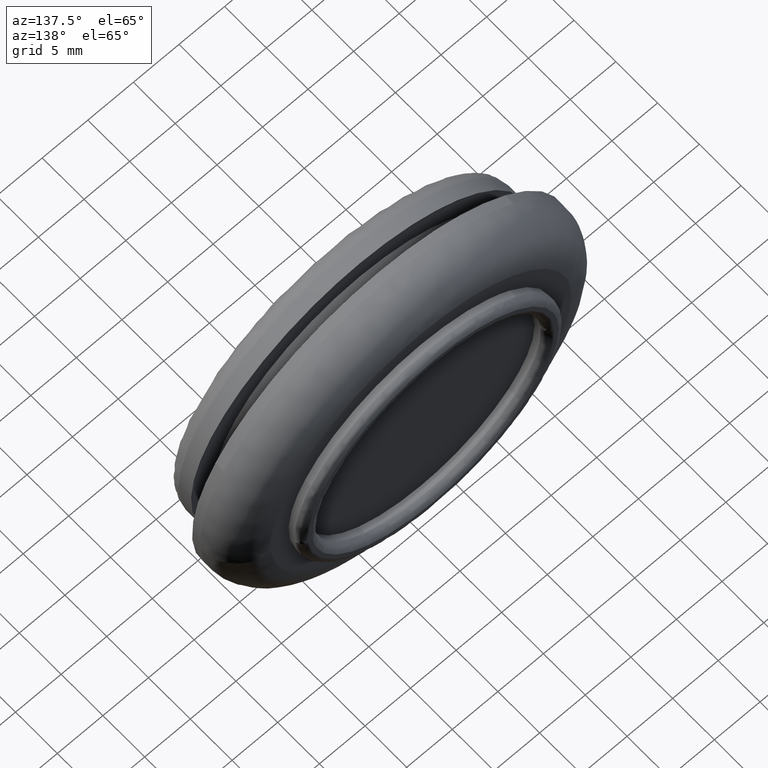
[diagram: clean part render]
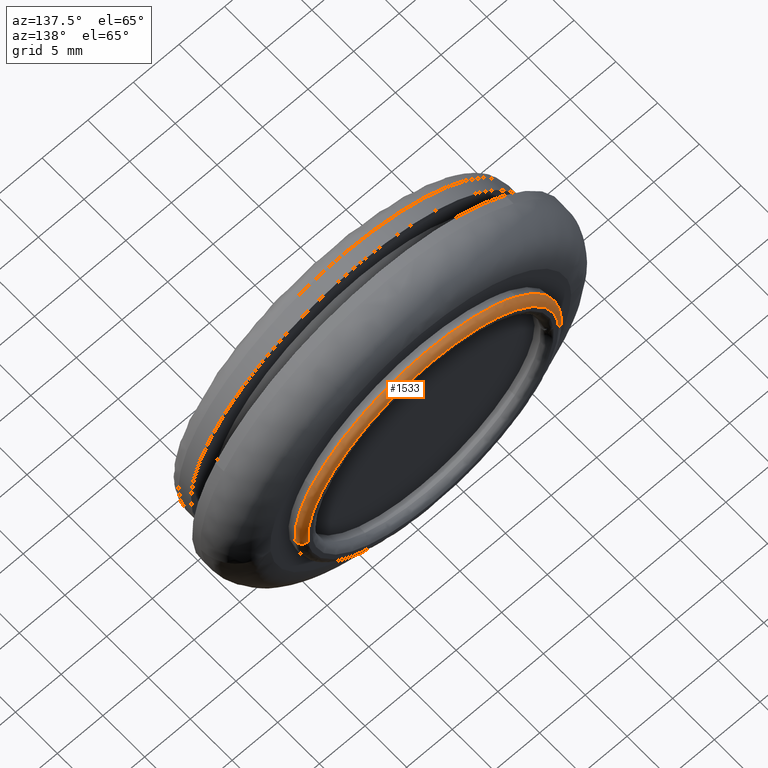
[diagram: same view with one face highlighted and labeled with its STEP entity id]
A machine part, auxiliary view. The second image highlights one B-rep face of the part: STEP entity #1533.
In plain terms, the highlighted face is a freeform B-spline surface patch.
Its self-contained STEP definition (entity closure, byte-faithful):
#464=CARTESIAN_POINT('',(12.686723378155641,11.050000000000081,7.021185792026794));
#465=VERTEX_POINT('',#464);
#466=CARTESIAN_POINT('',(0.0,11.050000000000001,14.500000000000000));
#467=VERTEX_POINT('',#466);
#468=CARTESIAN_POINT('',(12.686723378155639,11.050000000000079,7.021185792026794));
#469=CARTESIAN_POINT('',(8.547739709046137,11.050000000000002,14.500000000000005));
#470=CARTESIAN_POINT('',(0.0,11.050000000000001,14.500000000000000));
#478=(BOUNDED_CURVE()B_SPLINE_CURVE(2,(#468,#469,#470),.UNSPECIFIED.,.F.,.U.)B_SPLINE_CURVE_WITH_KNOTS((3,3),(0.332484281070432,0.500000000000000),.UNSPECIFIED.)CURVE()GEOMETRIC_REPRESENTATION_ITEM()RATIONAL_B_SPLINE_CURVE((0.870495143749140,0.803743127523477,1.0))REPRESENTATION_ITEM(''));
#479=EDGE_CURVE('',#465,#467,#478,.T.);
#481=CARTESIAN_POINT('',(-9.796057882035303,11.050000000057951,10.690521501396081));
#482=VERTEX_POINT('',#481);
#483=CARTESIAN_POINT('',(0.0,11.050000000000001,14.500000000000000));
#484=CARTESIAN_POINT('',(-5.638741411390129,11.050000000000001,14.499999999999998));
#485=CARTESIAN_POINT('',(-9.796057882035303,11.050000000057953,10.690521501396084));
#493=(BOUNDED_CURVE()B_SPLINE_CURVE(2,(#483,#484,#485),.UNSPECIFIED.,.F.,.U.)B_SPLINE_CURVE_WITH_KNOTS((3,3),(0.500000000000000,0.618415205458047),.UNSPECIFIED.)CURVE()GEOMETRIC_REPRESENTATION_ITEM()RATIONAL_B_SPLINE_CURVE((1.0,0.861267957267746,0.853959781285527))REPRESENTATION_ITEM(''));
#494=EDGE_CURVE('',#467,#482,#493,.T.);
#563=CARTESIAN_POINT('',(14.464702270685629,11.050000000222060,-1.011132147853047));
#564=VERTEX_POINT('',#563);
#565=CARTESIAN_POINT('',(14.464702270685633,11.050000000222056,-1.011132147853047));
#566=CARTESIAN_POINT('',(14.500000000000000,11.050000000000006,-0.506182180192494));
#567=CARTESIAN_POINT('',(14.500000000000000,11.050000000000001,-3.061516E-016));
#568=CARTESIAN_POINT('',(14.500000000000005,11.050000000000001,3.744739193880928));
#569=CARTESIAN_POINT('',(12.686723378155648,11.050000000000079,7.021185792026794));
#577=(BOUNDED_CURVE()B_SPLINE_CURVE(2,(#565,#566,#567,#568,#569),.UNSPECIFIED.,.F.,.U.)B_SPLINE_CURVE_WITH_KNOTS((3,2,3),(0.237833686534917,0.250000000000000,0.332484281070432),.UNSPECIFIED.)CURVE()GEOMETRIC_REPRESENTATION_ITEM()RATIONAL_B_SPLINE_CURVE((0.972879876386607,0.985746277152474,1.0,0.903363653663071,0.870495143749140))REPRESENTATION_ITEM(''));
#578=EDGE_CURVE('',#564,#465,#577,.T.);
#614=CARTESIAN_POINT('',(-14.498855140955319,11.050000000217780,0.182207578309288));
#615=VERTEX_POINT('',#614);
#616=CARTESIAN_POINT('',(-9.796057882035303,11.050000000057953,10.690521501396084));
#617=CARTESIAN_POINT('',(-14.420044631866851,11.050000000122392,6.453418498607384));
#618=CARTESIAN_POINT('',(-14.498855140955319,11.050000000217782,0.182207578309288));
#626=(BOUNDED_CURVE()B_SPLINE_CURVE(2,(#616,#617,#618),.UNSPECIFIED.,.F.,.U.)B_SPLINE_CURVE_WITH_KNOTS((3,3),(0.618415205458047,0.747784295921711),.UNSPECIFIED.)CURVE()GEOMETRIC_REPRESENTATION_ITEM()RATIONAL_B_SPLINE_CURVE((0.853959781285527,0.845975569493545,0.994854295643974))REPRESENTATION_ITEM(''));
#627=EDGE_CURVE('',#482,#615,#626,.T.);
#1438=CARTESIAN_POINT('',(13.664501861347622,11.798184500931379,-0.955194645286897));
#1439=CARTESIAN_POINT('',(13.691839095336451,11.798184500931375,-0.564122850058917));
#1440=CARTESIAN_POINT('',(13.696765311109505,11.798184500931381,-0.172127689651096));
#1441=CARTESIAN_POINT('',(13.868893000760600,11.798184500931379,13.524637621458407));
#1442=CARTESIAN_POINT('',(0.172127689651097,11.798184500931381,13.696765311109505));
#1443=CARTESIAN_POINT('',(-13.524637621458403,11.798184500931379,13.868893000760600));
#1444=CARTESIAN_POINT('',(-13.696765311109505,11.798184500931381,0.172127689651098));
#1445=CARTESIAN_POINT('',(14.522713477249935,11.858153230426838,-1.015186524123823));
#1446=CARTESIAN_POINT('',(14.551767651380015,11.858153230426840,-0.599553104862859));
#1447=CARTESIAN_POINT('',(14.557003262668674,11.858153230426838,-0.182938327622090));
#1448=CARTESIAN_POINT('',(14.739941590290764,11.858153230426840,14.374064935046585));
#1449=CARTESIAN_POINT('',(0.182938327622091,11.858153230426838,14.557003262668674));
#1450=CARTESIAN_POINT('',(-14.374064935046585,11.858153230426840,14.739941590290769));
#1451=CARTESIAN_POINT('',(-14.557003262668674,11.858153230426838,0.182938327622092));
#1452=CARTESIAN_POINT('',(14.462891280228030,10.997847314352187,-1.011004751319777));
#1453=CARTESIAN_POINT('',(14.491825773932561,10.997847314352187,-0.597083415984097));
#1454=CARTESIAN_POINT('',(14.497039818606233,10.997847314352182,-0.182184765094329));
#1455=CARTESIAN_POINT('',(14.679224583700559,10.997847314352187,14.314855053511904));
#1456=CARTESIAN_POINT('',(0.182184765094330,10.997847314352182,14.497039818606233));
#1457=CARTESIAN_POINT('',(-14.314855053511904,10.997847314352187,14.679224583700563));
#1458=CARTESIAN_POINT('',(-14.497039818606233,10.997847314352182,0.182184765094331));
#1466=(BOUNDED_SURFACE()B_SPLINE_SURFACE(2,2,((#1438,#1445,#1452),(#1439,#1446,#1453),(#1440,#1447,#1454),(#1441,#1448,#1455),(#1442,#1449,#1456),(#1443,#1450,#1457),(#1444,#1451,#1458)),.UNSPECIFIED.,.F.,.F.,.U.)B_SPLINE_SURFACE_WITH_KNOTS((3,2,2,3),(3,3),(0.0,0.960854229880932,24.982232885476112,49.003611541071272),(0.0,1.366780659426968),.UNSPECIFIED.)GEOMETRIC_REPRESENTATION_ITEM()RATIONAL_B_SPLINE_SURFACE(((0.895729918675743,0.587800171522261,0.895729657498047),(0.905606678326798,0.594281545981157,0.905606414269227),(0.916342285752876,0.601326517634860,0.916342018565008),(0.647951844143840,0.425202058326902,0.647951655213486),(0.916342285752876,0.601326517634860,0.916342018565008),(0.647951844143840,0.425202058326902,0.647951655213486),(0.916342285752876,0.601326517634860,0.916342018565008)))REPRESENTATION_ITEM('')SURFACE());
#1467=ORIENTED_EDGE('',*,*,#479,.F.);
#1468=ORIENTED_EDGE('',*,*,#578,.F.);
#1469=CARTESIAN_POINT('',(13.716528015457490,11.800000000000001,-0.958832209174084));
#1470=VERTEX_POINT('',#1469);
#1471=CARTESIAN_POINT('',(13.716528015457484,11.799999999999999,-0.958832209174084));
#1472=CARTESIAN_POINT('',(14.464702270243228,11.799999999696009,-1.011132147812930));
#1473=CARTESIAN_POINT('',(14.464702270685631,11.050000000222061,-1.011132147853047));
#1481=(BOUNDED_CURVE()B_SPLINE_CURVE(2,(#1471,#1472,#1473),.UNSPECIFIED.,.F.,.U.)B_SPLINE_CURVE_WITH_KNOTS((3,3),(-1.734750791237235,-0.265249208956908),.UNSPECIFIED.)CURVE()GEOMETRIC_REPRESENTATION_ITEM()RATIONAL_B_SPLINE_CURVE((0.869031711729359,0.614498216712679,0.869031711662103))REPRESENTATION_ITEM(''));
#1482=EDGE_CURVE('',#1470,#564,#1481,.T.);
#1483=ORIENTED_EDGE('',*,*,#1482,.F.);
#1484=CARTESIAN_POINT('',(0.0,11.800000000000001,13.750000000000000));
#1485=VERTEX_POINT('',#1484);
#1486=CARTESIAN_POINT('',(13.716528015457484,11.800000000000001,-0.958832209174084));
#1487=CARTESIAN_POINT('',(13.750000000000002,11.799999999999997,-0.480000343278450));
#1488=CARTESIAN_POINT('',(13.750000000000000,11.800000000000001,-3.061516E-016));
#1489=CARTESIAN_POINT('',(13.750000000000000,11.799999999999997,13.750000000000000));
#1490=CARTESIAN_POINT('',(0.0,11.800000000000001,13.750000000000000));
#1498=(BOUNDED_CURVE()B_SPLINE_CURVE(2,(#1486,#1487,#1488,#1489,#1490),.UNSPECIFIED.,.F.,.U.)B_SPLINE_CURVE_WITH_KNOTS((3,2,3),(0.237833686535106,0.250000000000000,0.500000000000000),.UNSPECIFIED.)CURVE()GEOMETRIC_REPRESENTATION_ITEM()RATIONAL_B_SPLINE_CURVE((0.972879876387005,0.985746277152694,1.0,0.707106781186547,1.0))REPRESENTATION_ITEM(''));
#1499=EDGE_CURVE('',#1470,#1485,#1498,.T.);
#1500=ORIENTED_EDGE('',*,*,#1499,.T.);
#1501=CARTESIAN_POINT('',(-13.748914357896600,11.800000000000001,0.172783048397300));
#1502=VERTEX_POINT('',#1501);
#1503=CARTESIAN_POINT('',(0.0,11.800000000000001,13.750000000000000));
#1504=CARTESIAN_POINT('',(-13.578289036225474,11.799999999999999,13.750000000000002));
#1505=CARTESIAN_POINT('',(-13.748914357896600,11.799999999999999,0.172783048397300));
#1513=(BOUNDED_CURVE()B_SPLINE_CURVE(2,(#1503,#1504,#1505),.UNSPECIFIED.,.F.,.U.)B_SPLINE_CURVE_WITH_KNOTS((3,3),(0.500000000000000,0.747784295921727),.UNSPECIFIED.)CURVE()GEOMETRIC_REPRESENTATION_ITEM()RATIONAL_B_SPLINE_CURVE((1.0,0.709702639984241,0.994854295644009))REPRESENTATION_ITEM(''));
#1514=EDGE_CURVE('',#1485,#1502,#1513,.T.);
#1515=ORIENTED_EDGE('',*,*,#1514,.T.);
#1516=CARTESIAN_POINT('',(-13.748914357896602,11.799999999999999,0.172783048397300));
#1517=CARTESIAN_POINT('',(-14.498855140519806,11.799999999811721,0.182207578303129));
#1518=CARTESIAN_POINT('',(-14.498855140955323,11.050000000217779,0.182207578309288));
#1526=(BOUNDED_CURVE()B_SPLINE_CURVE(2,(#1516,#1517,#1518),.UNSPECIFIED.,.F.,.U.)B_SPLINE_CURVE_WITH_KNOTS((3,3),(-1.734750791397548,-0.265249208945042),.UNSPECIFIED.)CURVE()GEOMETRIC_REPRESENTATION_ITEM()RATIONAL_B_SPLINE_CURVE((0.889029723483997,0.628638946370454,0.889029723362585))REPRESENTATION_ITEM(''));
#1527=EDGE_CURVE('',#1502,#615,#1526,.T.);
#1528=ORIENTED_EDGE('',*,*,#1527,.T.);
#1529=ORIENTED_EDGE('',*,*,#627,.F.);
#1530=ORIENTED_EDGE('',*,*,#494,.F.);
#1531=EDGE_LOOP('',(#1467,#1468,#1483,#1500,#1515,#1528,#1529,#1530));
#1532=FACE_OUTER_BOUND('',#1531,.T.);
#1533=ADVANCED_FACE('',(#1532),#1466,.T.);